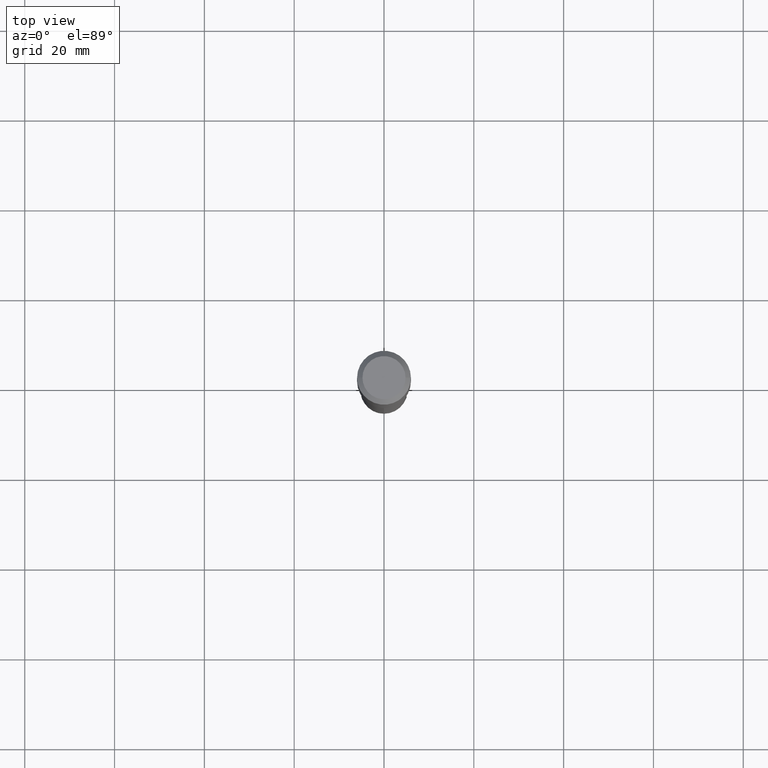
[diagram: clean part render]
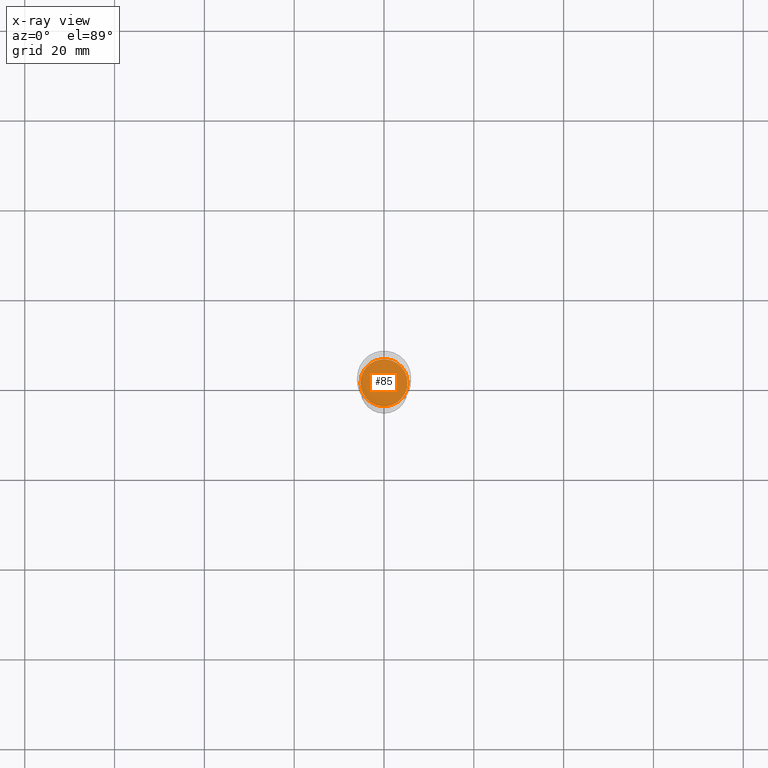
[diagram: x-ray — body ghosted, one internal face saturated and labeled with its STEP entity id]
A machine part, top view, then the same camera in x-ray: the body is ghosted and one INTERNAL B-rep face — a face not visible from any outside direction — is saturated and labeled: STEP entity #85.
In plain terms, the highlighted planar face has unit normal (-0, 0, 1).
Its self-contained STEP definition (entity closure, byte-faithful):
#7 = CARTESIAN_POINT ( 'NONE',  ( 6.354306145991460877E-29, -9.072265110850034200E-15, -2.598400000000000709 ) ) ;
#46 = CARTESIAN_POINT ( 'NONE',  ( 0.2062000000000000222, -1.051215201498894083E-14, -2.598400000000000709 ) ) ;
#81 = DIRECTION ( 'NONE',  ( -2.445468806185136597E-29, 3.491481338843145583E-15, 1.000000000000000000 ) ) ;
#85 = ADVANCED_FACE ( 'NONE', ( #380 ), #372, .F. ) ;
#132 = CARTESIAN_POINT ( 'NONE',  ( -0.2062000000000000222, -7.604476762538596061E-15, -2.598400000000000709 ) ) ;
#175 = ORIENTED_EDGE ( 'NONE', *, *, #336, .F. ) ;
#190 = DIRECTION ( 'NONE',  ( -2.445468806185136597E-29, 3.491481338843145583E-15, 1.000000000000000000 ) ) ;
#216 = AXIS2_PLACEMENT_3D ( 'NONE', #7, #190, #427 ) ;
#232 = CIRCLE ( 'NONE', #471, 0.2062000000000000222 ) ;
#256 = VERTEX_POINT ( 'NONE', #132 ) ;
#261 = CARTESIAN_POINT ( 'NONE',  ( 6.354306145991460877E-29, -9.072265110850034200E-15, -2.598400000000000709 ) ) ;
#292 = DIRECTION ( 'NONE',  ( 1.000000000000000000, -6.982962677686265922E-15, 4.876176775795935793E-29 ) ) ;
#336 = EDGE_CURVE ( 'NONE', #256, #477, #412, .T. ) ;
#372 = PLANE ( 'NONE',  #402 ) ;
#374 = DIRECTION ( 'NONE',  ( 1.000000000000000000, -6.982962677686262766E-15, 0.000000000000000000 ) ) ;
#380 = FACE_OUTER_BOUND ( 'NONE', #452, .T. ) ;
#401 = ORIENTED_EDGE ( 'NONE', *, *, #448, .F. ) ;
#402 = AXIS2_PLACEMENT_3D ( 'NONE', #490, #450, #292 ) ;
#412 = CIRCLE ( 'NONE', #216, 0.2062000000000000222 ) ;
#427 = DIRECTION ( 'NONE',  ( 1.000000000000000000, -6.982962677686262766E-15, 0.000000000000000000 ) ) ;
#448 = EDGE_CURVE ( 'NONE', #477, #256, #232, .T. ) ;
#450 = DIRECTION ( 'NONE',  ( -2.438088387897960049E-29, 3.491481338843145188E-15, 1.000000000000000000 ) ) ;
#452 = EDGE_LOOP ( 'NONE', ( #401, #175 ) ) ;
#471 = AXIS2_PLACEMENT_3D ( 'NONE', #261, #81, #374 ) ;
#477 = VERTEX_POINT ( 'NONE', #46 ) ;
#490 = CARTESIAN_POINT ( 'NONE',  ( 6.354306145991460877E-29, -9.072265110850034200E-15, -2.598400000000000709 ) ) ;